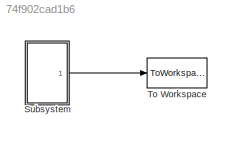
MODEL slx_74f902cad1b6
KIND model
CONFIG AbsTol = auto
CONFIG EnableMultiTasking = off
CONFIG FixedStep = auto
CONFIG MaxStep = 0.001
CONFIG MinStep = auto
CONFIG RelTol = 1e-3
CONFIG SampleTimeConstraint = Unconstrained
CONFIG Solver = ode45
CONFIG SolverName = ode45
CONFIG StartTime = 0.0
CONFIG StopTime = 15
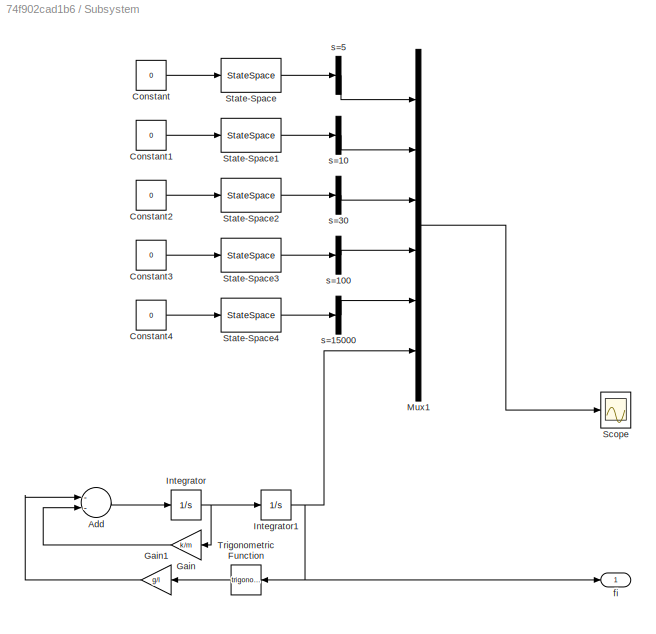
BLOCK [SubSystem] Subsystem
  Ports = [0, 1]
  RequestExecContextInheritance = off
BLOCK [Sum] Subsystem/Add
  InputSameDT = off
  Inputs = --
  OutDataTypeStr = Inherit: Inherit via internal rule
  Ports = [2, 1]
  SaturateOnIntegerOverflow = off
BLOCK [Constant] Subsystem/Constant
  Value = 0
BLOCK [Constant] Subsystem/Constant1
  Value = 0
BLOCK [Constant] Subsystem/Constant2
  Value = 0
BLOCK [Constant] Subsystem/Constant3
  Value = 0
BLOCK [Constant] Subsystem/Constant4
  Value = 0
BLOCK [Gain] Subsystem/Gain
  Gain = k/m
  OutDataTypeStr = Inherit: Inherit via internal rule
  ParamDataTypeStr = Inherit: Inherit via internal rule
  SaturateOnIntegerOverflow = off
BLOCK [Gain] Subsystem/Gain1
  Gain = g/l
  OutDataTypeStr = Inherit: Inherit via internal rule
  ParamDataTypeStr = Inherit: Inherit via internal rule
  SaturateOnIntegerOverflow = off
BLOCK [Integrator] Subsystem/Integrator
  Ports = [1, 1]
BLOCK [Integrator] Subsystem/Integrator1
  InitialCondition = fi0*pi/180
  Ports = [1, 1]
BLOCK [Mux] Subsystem/Mux1
  DisplayOption = bar
  Inputs = 6
  Ports = [6, 1]
BLOCK [Scope] Subsystem/Scope
  Floating = off
  NumInputPorts = 1
  Ports = [1]
  ScopeSpecificationString = Simulink.scopes.TimeScopeBlockCfg('CurrentConfiguration', extmgr.ConfigurationSet(extmgr.Configuration('Core','General UI',true),extmgr.Configuration('Core','Source UI',true),extmgr.Configuration('Sources','WiredSimulink',true),extmgr.Configuration('Visuals','Time Domain',true,'SerializedDisplays',{struct('MinYLimReal','-1.93727','MaxYLimReal','2.10588','YLabelReal','','MinYLimMag','0.00000','MaxY...<+1846ch>
BLOCK [StateSpace] Subsystem/State-Space
  A = A5
  B = B
  C = C
  D = D
  InitialCondition = [pi/2 0]
  Ports = [1, 1]
BLOCK [StateSpace] Subsystem/State-Space1
  A = A10
  B = B
  C = C
  D = D
  InitialCondition = [pi/2 0]
  Ports = [1, 1]
BLOCK [StateSpace] Subsystem/State-Space2
  A = A30
  B = B
  C = C
  D = D
  InitialCondition = [pi/2 0]
  Ports = [1, 1]
BLOCK [StateSpace] Subsystem/State-Space3
  A = A100
  B = B
  C = C
  D = D
  InitialCondition = [pi/2 0]
  Ports = [1, 1]
BLOCK [StateSpace] Subsystem/State-Space4
  A = A15000
  B = B
  C = C
  D = D
  InitialCondition = [pi/2 0]
  Ports = [1, 1]
BLOCK [Trigonometry] Subsystem/Trigonometric Function
  Ports = [1, 1]
BLOCK [Outport] Subsystem/fi
  IconDisplay = Port number
BLOCK [Demux] Subsystem/s=10 
  DisplayOption = bar
  Outputs = 1
  Ports = [1, 1]
BLOCK [Demux] Subsystem/s=100
  DisplayOption = bar
  Outputs = 1
  Ports = [1, 1]
BLOCK [Demux] Subsystem/s=15000
  DisplayOption = bar
  Outputs = 1
  Ports = [1, 1]
BLOCK [Demux] Subsystem/s=30 
  DisplayOption = bar
  Outputs = 1
  Ports = [1, 1]
BLOCK [Demux] Subsystem/s=5 
  DisplayOption = bar
  Outputs = 1
  Ports = [1, 1]
BLOCK [ToWorkspace] To Workspace
  FixptAsFi = on
  MaxDataPoints = inf
  Ports = [1]
  SampleTime = -1
  Save2DSignal = 3-D array (concatenate along third dimension)
  VariableName = fi
LINE Subsystem/Add:1 -> Subsystem/Integrator:1
LINE Subsystem/Constant1:1 -> Subsystem/State-Space1:1
LINE Subsystem/Constant2:1 -> Subsystem/State-Space2:1
LINE Subsystem/Constant3:1 -> Subsystem/State-Space3:1
LINE Subsystem/Constant4:1 -> Subsystem/State-Space4:1
LINE Subsystem/Constant:1 -> Subsystem/State-Space:1
LINE Subsystem/Gain1:1 -> Subsystem/Add:1
LINE Subsystem/Gain:1 -> Subsystem/Add:2
NET Subsystem/Integrator1:1 -> Subsystem/Mux1:6, Subsystem/Trigonometric Function:1, Subsystem/fi:1
NET Subsystem/Integrator:1 -> Subsystem/Gain:1, Subsystem/Integrator1:1
LINE Subsystem/Mux1:1 -> Subsystem/Scope:1
LINE Subsystem/State-Space1:1 -> Subsystem/s=10 :1
LINE Subsystem/State-Space2:1 -> Subsystem/s=30 :1
LINE Subsystem/State-Space3:1 -> Subsystem/s=100:1
LINE Subsystem/State-Space4:1 -> Subsystem/s=15000:1
LINE Subsystem/State-Space:1 -> Subsystem/s=5 :1
LINE Subsystem/Trigonometric Function:1 -> Subsystem/Gain1:1
LINE Subsystem/s=10 :1 -> Subsystem/Mux1:2
LINE Subsystem/s=100:1 -> Subsystem/Mux1:4
LINE Subsystem/s=15000:1 -> Subsystem/Mux1:5
LINE Subsystem/s=30 :1 -> Subsystem/Mux1:3
LINE Subsystem/s=5 :1 -> Subsystem/Mux1:1
LINE Subsystem:1 -> To Workspace:1
note: NET lines group one-source signal fan-out (src -> all destinations, sorted); 1:1 wires keep LINE
